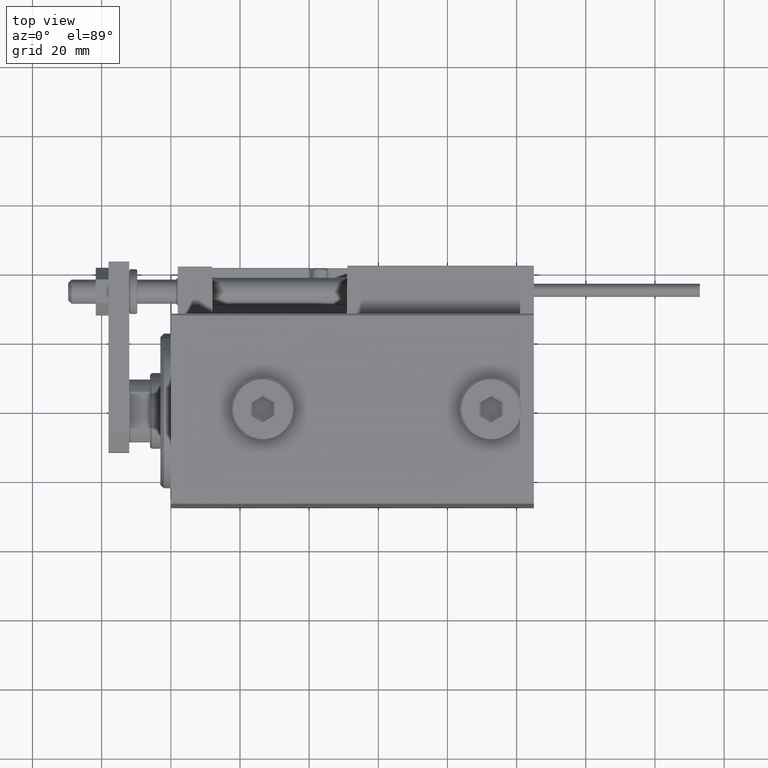
[diagram: clean part render]
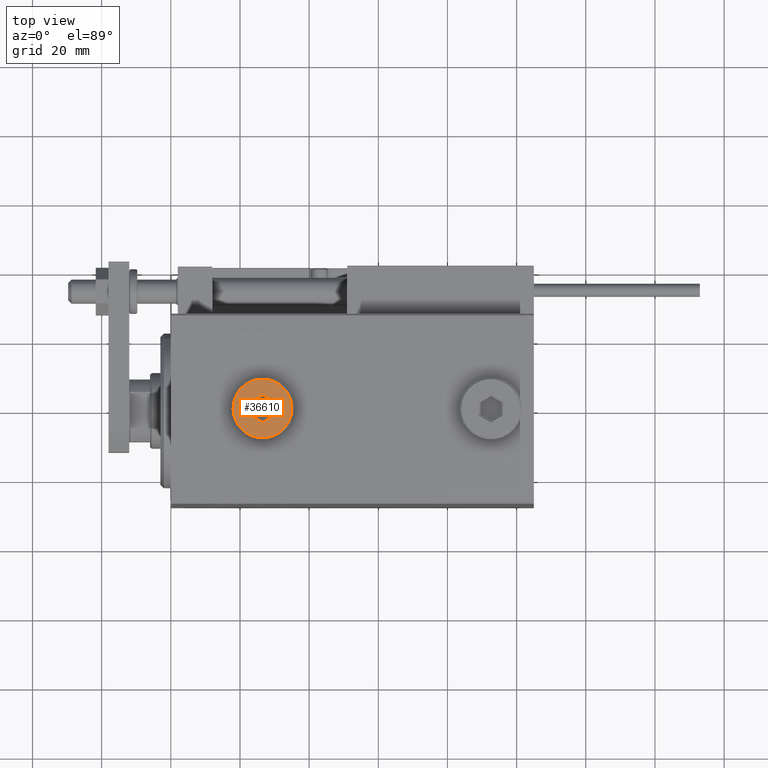
[diagram: same view with one face highlighted and labeled with its STEP entity id]
A machine part, top view. The second image highlights one B-rep face of the part: STEP entity #36610.
In plain terms, the highlighted planar face has unit normal (0, 0, 1).
Its self-contained STEP definition (entity closure, byte-faithful):
#47 = FACE_BOUND ( 'NONE', #1725, .T. ) ;
#1109 = VERTEX_POINT ( 'NONE', #28236 ) ;
#1725 = EDGE_LOOP ( 'NONE', ( #31311, #23240, #27165, #35636, #42763, #5112 ) ) ;
#3208 = DIRECTION ( 'NONE',  ( 1.000000000000000000, 0.000000000000000000, -0.000000000000000000 ) ) ;
#4744 = VERTEX_POINT ( 'NONE', #11891 ) ;
#5020 = EDGE_CURVE ( 'NONE', #46897, #34515, #6642, .T. ) ;
#5112 = ORIENTED_EDGE ( 'NONE', *, *, #5020, .T. ) ;
#6555 = DIRECTION ( 'NONE',  ( 0.000000000000000000, 0.000000000000000000, 1.000000000000000000 ) ) ;
#6642 = LINE ( 'NONE', #34503, #11097 ) ;
#7299 = VERTEX_POINT ( 'NONE', #40013 ) ;
#8076 = AXIS2_PLACEMENT_3D ( 'NONE', #42759, #6555, #50313 ) ;
#9878 = AXIS2_PLACEMENT_3D ( 'NONE', #28602, #48398, #20269 ) ;
#10614 = LINE ( 'NONE', #31183, #43578 ) ;
#11026 = FACE_OUTER_BOUND ( 'NONE', #29946, .T. ) ;
#11097 = VECTOR ( 'NONE', #14706, 1000.000000000000114 ) ;
#11269 = CARTESIAN_POINT ( 'NONE',  ( 3.500000000000006661, 2.020725942163694722, 5.000000000000000000 ) ) ;
#11554 = LINE ( 'NONE', #31361, #12170 ) ;
#11555 = CIRCLE ( 'NONE', #9878, 8.500000000000010658 ) ;
#11891 = CARTESIAN_POINT ( 'NONE',  ( -8.500000000000010658, 0.000000000000000000, 5.000000000000000000 ) ) ;
#12170 = VECTOR ( 'NONE', #12322, 1000.000000000000000 ) ;
#12278 = ORIENTED_EDGE ( 'NONE', *, *, #45053, .T. ) ;
#12322 = DIRECTION ( 'NONE',  ( 0.000000000000000000, 1.000000000000000000, 0.000000000000000000 ) ) ;
#13188 = EDGE_CURVE ( 'NONE', #1109, #41534, #50393, .T. ) ;
#13864 = CARTESIAN_POINT ( 'NONE',  ( 3.500000000000006661, -2.020725942163693833, 5.000000000000000000 ) ) ;
#14706 = DIRECTION ( 'NONE',  ( -0.8660254037844385966, 0.4999999999999999445, 0.000000000000000000 ) ) ;
#15236 = EDGE_CURVE ( 'NONE', #34515, #1109, #11554, .T. ) ;
#16649 = VERTEX_POINT ( 'NONE', #11269 ) ;
#16899 = AXIS2_PLACEMENT_3D ( 'NONE', #31338, #42808, #3208 ) ;
#17040 = CARTESIAN_POINT ( 'NONE',  ( -1.006139216460143630E-15, -4.041451884327387667, 5.000000000000000000 ) ) ;
#17190 = CIRCLE ( 'NONE', #8076, 8.500000000000010658 ) ;
#19591 = VECTOR ( 'NONE', #50905, 1000.000000000000000 ) ;
#20269 = DIRECTION ( 'NONE',  ( 1.000000000000000000, 0.000000000000000000, 0.000000000000000000 ) ) ;
#22756 = CARTESIAN_POINT ( 'NONE',  ( 0.2500000000000027756, -3.897114317029979347, 5.000000000000000000 ) ) ;
#23240 = ORIENTED_EDGE ( 'NONE', *, *, #13188, .T. ) ;
#25012 = EDGE_CURVE ( 'NONE', #16649, #27176, #45716, .T. ) ;
#25546 = EDGE_CURVE ( 'NONE', #4744, #7299, #11555, .T. ) ;
#25911 = CARTESIAN_POINT ( 'NONE',  ( 3.500000000000006661, -1.732050807568878303, 5.000000000000000000 ) ) ;
#26660 = PLANE ( 'NONE',  #16899 ) ;
#27165 = ORIENTED_EDGE ( 'NONE', *, *, #37512, .T. ) ;
#27176 = VERTEX_POINT ( 'NONE', #13864 ) ;
#28236 = CARTESIAN_POINT ( 'NONE',  ( -3.500000000000006661, 2.020725942163692945, 5.000000000000000000 ) ) ;
#28602 = CARTESIAN_POINT ( 'NONE',  ( 0.000000000000000000, 0.000000000000000000, 5.000000000000000000 ) ) ;
#29311 = CARTESIAN_POINT ( 'NONE',  ( 1.590596867181068292E-15, 4.041451884327386779, 5.000000000000000000 ) ) ;
#29946 = EDGE_LOOP ( 'NONE', ( #46677, #12278 ) ) ;
#31183 = CARTESIAN_POINT ( 'NONE',  ( 3.250000000000003109, 2.165063509461103042, 5.000000000000000000 ) ) ;
#31311 = ORIENTED_EDGE ( 'NONE', *, *, #15236, .T. ) ;
#31338 = CARTESIAN_POINT ( 'NONE',  ( 0.000000000000000000, 0.000000000000000000, 5.000000000000000000 ) ) ;
#31361 = CARTESIAN_POINT ( 'NONE',  ( -3.500000000000006661, 1.732050807568878081, 5.000000000000000000 ) ) ;
#33969 = DIRECTION ( 'NONE',  ( -0.8660254037844387076, -0.4999999999999998890, 0.000000000000000000 ) ) ;
#34001 = VECTOR ( 'NONE', #45979, 1000.000000000000000 ) ;
#34503 = CARTESIAN_POINT ( 'NONE',  ( -3.250000000000003109, -2.165063509461102598, 5.000000000000000000 ) ) ;
#34515 = VERTEX_POINT ( 'NONE', #35859 ) ;
#35012 = LINE ( 'NONE', #22756, #42981 ) ;
#35636 = ORIENTED_EDGE ( 'NONE', *, *, #25012, .T. ) ;
#35859 = CARTESIAN_POINT ( 'NONE',  ( -3.500000000000006661, -2.020725942163694278, 5.000000000000000000 ) ) ;
#36610 = ADVANCED_FACE ( 'NONE', ( #47, #11026 ), #26660, .T. ) ;
#37512 = EDGE_CURVE ( 'NONE', #41534, #16649, #10614, .T. ) ;
#40013 = CARTESIAN_POINT ( 'NONE',  ( 8.500000000000010658, 1.071565949253934716E-15, 5.000000000000000000 ) ) ;
#41534 = VERTEX_POINT ( 'NONE', #29311 ) ;
#42404 = DIRECTION ( 'NONE',  ( 0.8660254037844387076, -0.4999999999999998890, 0.000000000000000000 ) ) ;
#42759 = CARTESIAN_POINT ( 'NONE',  ( 0.000000000000000000, 0.000000000000000000, 5.000000000000000000 ) ) ;
#42763 = ORIENTED_EDGE ( 'NONE', *, *, #48058, .T. ) ;
#42808 = DIRECTION ( 'NONE',  ( 0.000000000000000000, 0.000000000000000000, 1.000000000000000000 ) ) ;
#42981 = VECTOR ( 'NONE', #33969, 1000.000000000000000 ) ;
#43578 = VECTOR ( 'NONE', #42404, 1000.000000000000000 ) ;
#45053 = EDGE_CURVE ( 'NONE', #7299, #4744, #17190, .T. ) ;
#45716 = LINE ( 'NONE', #25911, #34001 ) ;
#45979 = DIRECTION ( 'NONE',  ( 0.000000000000000000, -1.000000000000000000, 0.000000000000000000 ) ) ;
#46218 = CARTESIAN_POINT ( 'NONE',  ( -0.2500000000000027756, 3.897114317029978459, 5.000000000000000000 ) ) ;
#46677 = ORIENTED_EDGE ( 'NONE', *, *, #25546, .T. ) ;
#46897 = VERTEX_POINT ( 'NONE', #17040 ) ;
#48058 = EDGE_CURVE ( 'NONE', #27176, #46897, #35012, .T. ) ;
#48398 = DIRECTION ( 'NONE',  ( 0.000000000000000000, 0.000000000000000000, 1.000000000000000000 ) ) ;
#50313 = DIRECTION ( 'NONE',  ( 1.000000000000000000, 0.000000000000000000, 0.000000000000000000 ) ) ;
#50393 = LINE ( 'NONE', #46218, #19591 ) ;
#50905 = DIRECTION ( 'NONE',  ( 0.8660254037844387076, 0.4999999999999998335, 0.000000000000000000 ) ) ;